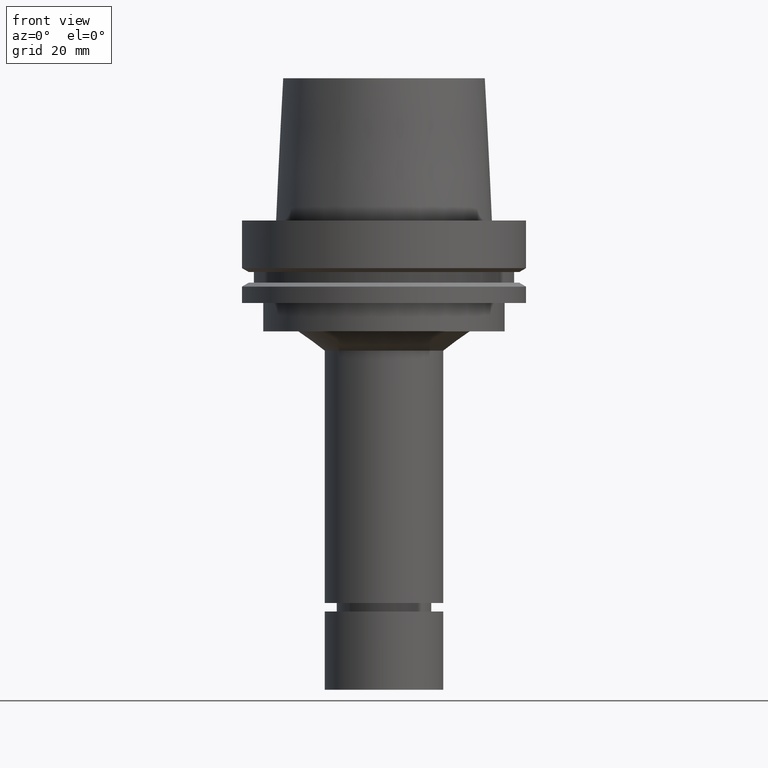
[diagram: clean part render]
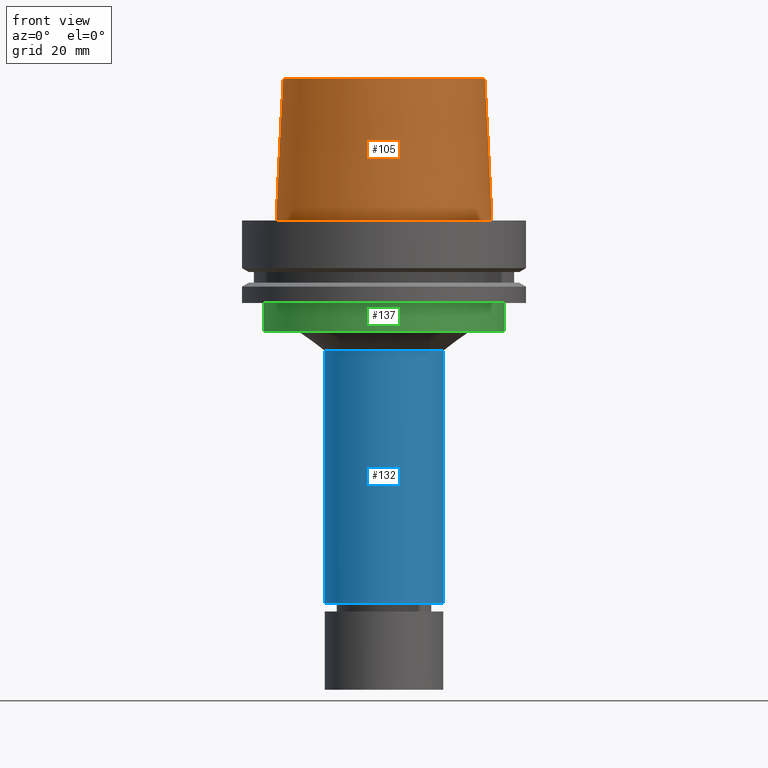
[diagram: same view with three faces highlighted in distinct colors, each labeled with its STEP entity id]
A machine part, front view with three faces highlighted in distinct colors.
Their STEP definitions:

[orange] entity #105 — the highlighted conical surface has half-angle 2.862 deg.
#105=ADVANCED_FACE('Unnamed[1]',(#260,#261),#262,.T.);
#120=EDGE_CURVE('Unnamed[1]',#285,#285,#286,.T.);
#157=EDGE_CURVE('Unnamed[1]',#340,#340,#341,.T.);
#260=FACE_BOUND('',#469,.T.);
#261=FACE_BOUND('',#470,.T.);
#262=CONICAL_SURFACE('',#471,36.7500000007484,0.0499583956894843);
#285=VERTEX_POINT('',#500);
#286=CIRCLE('',#501,35.5000000015618);
#340=VERTEX_POINT('',#566);
#341=CIRCLE('',#567,37.9999999999349);
#469=EDGE_LOOP('',(#698));
#470=EDGE_LOOP('',(#699));
#471=AXIS2_PLACEMENT_3D('',#700,#701,#702);
#500=CARTESIAN_POINT('',(-3.06161699786838E-015,35.5000000015618,50.0));
#501=AXIS2_PLACEMENT_3D('',#727,#728,#729);
#566=CARTESIAN_POINT('',(-3.3636548776863E-032,37.9999999999349,-2.44634216324803E-015));
#567=AXIS2_PLACEMENT_3D('',#787,#788,#789);
#698=ORIENTED_EDGE('',*,*,#157,.F.);
#699=ORIENTED_EDGE('',*,*,#120,.T.);
#700=CARTESIAN_POINT('',(-1.53080849893419E-015,-3.06161699786838E-015,25.0));
#701=DIRECTION('',(6.12323399573676E-017,1.22464679914735E-016,-1.0));
#702=DIRECTION('',(-1.23259516440783E-032,1.0,1.22464679914735E-016));
#727=CARTESIAN_POINT('',(-3.06161699786838E-015,-6.12323399573676E-015,50.0));
#728=DIRECTION('',(6.12323399573677E-017,1.22464679914735E-016,-1.0));
#729=DIRECTION('',(-1.23259516440783E-032,1.0,1.22464679914735E-016));
#787=CARTESIAN_POINT('',(0.0,0.0,0.0));
#788=DIRECTION('',(6.12323399573677E-017,1.22464679914735E-016,-1.0));
#789=DIRECTION('',(-1.23259516440783E-032,1.0,1.22464679914735E-016));

[blue] entity #132 — the highlighted cylindrical surface (bore or boss wall) has radius 21 mm, axis along (0, 0, -1).
#132=ADVANCED_FACE('Unnamed[1]',(#300,#301),#302,.T.);
#170=EDGE_CURVE('Unnamed[1]',#360,#360,#361,.T.);
#194=EDGE_CURVE('Unnamed[1]',#397,#397,#398,.T.);
#300=FACE_BOUND('',#517,.T.);
#301=FACE_BOUND('',#518,.T.);
#302=CYLINDRICAL_SURFACE('',#519,21.0);
#360=VERTEX_POINT('',#592);
#361=CIRCLE('',#593,21.0);
#397=VERTEX_POINT('',#639);
#398=CIRCLE('',#640,21.0);
#517=EDGE_LOOP('',(#739));
#518=EDGE_LOOP('',(#740));
#519=AXIS2_PLACEMENT_3D('',#741,#742,#743);
#592=CARTESIAN_POINT('',(8.23574972426594E-015,21.0,-134.5));
#593=AXIS2_PLACEMENT_3D('',#808,#809,#810);
#639=CARTESIAN_POINT('',(2.80227603553221E-015,21.0,-45.76464067));
#640=AXIS2_PLACEMENT_3D('',#849,#850,#851);
#739=ORIENTED_EDGE('',*,*,#170,.F.);
#740=ORIENTED_EDGE('',*,*,#194,.T.);
#741=CARTESIAN_POINT('',(5.51901287989908E-015,1.10380257597982E-014,-90.1323203349999));
#742=DIRECTION('',(6.12323399573677E-017,1.22464679914735E-016,-1.0));
#743=DIRECTION('',(-1.23259516440783E-032,1.0,1.22464679914735E-016));
#808=CARTESIAN_POINT('',(8.23574972426594E-015,1.64714994485319E-014,-134.5));
#809=DIRECTION('',(6.12323399573677E-017,1.22464679914735E-016,-1.0));
#810=DIRECTION('',(-1.23259516440783E-032,1.0,1.22464679914735E-016));
#849=CARTESIAN_POINT('',(2.80227603553221E-015,5.60455207106442E-015,-45.76464067));
#850=DIRECTION('',(6.12323399573677E-017,1.22464679914735E-016,-1.0));
#851=DIRECTION('',(-1.23259516440783E-032,1.0,1.22464679914735E-016));

[green] entity #137 — the highlighted cylindrical surface (bore or boss wall) has radius 42.5 mm, axis along (0, 0, -1).
#137=ADVANCED_FACE('Unnamed[1]',(#308,#309),#310,.T.);
#168=EDGE_CURVE('Unnamed[1]',#357,#357,#358,.T.);
#196=EDGE_CURVE('Unnamed[1]',#400,#400,#401,.T.);
#308=FACE_BOUND('',#527,.T.);
#309=FACE_BOUND('',#528,.T.);
#310=CYLINDRICAL_SURFACE('',#529,42.5);
#357=VERTEX_POINT('',#588);
#358=CIRCLE('',#589,42.5);
#400=VERTEX_POINT('',#643);
#401=CIRCLE('',#644,42.5);
#527=EDGE_LOOP('',(#748));
#528=EDGE_LOOP('',(#749));
#529=AXIS2_PLACEMENT_3D('',#750,#751,#752);
#588=CARTESIAN_POINT('',(1.77573785876366E-015,42.5,-29.0));
#589=AXIS2_PLACEMENT_3D('',#805,#806,#807);
#643=CARTESIAN_POINT('',(2.38806125833734E-015,42.5,-39.0));
#644=AXIS2_PLACEMENT_3D('',#852,#853,#854);
#748=ORIENTED_EDGE('',*,*,#196,.F.);
#749=ORIENTED_EDGE('',*,*,#168,.T.);
#750=CARTESIAN_POINT('',(2.0818995585505E-015,4.163799117101E-015,-34.0));
#751=DIRECTION('',(6.12323399573677E-017,1.22464679914735E-016,-1.0));
#752=DIRECTION('',(-1.23259516440783E-032,1.0,1.22464679914735E-016));
#805=CARTESIAN_POINT('',(1.77573785876366E-015,3.55147571752733E-015,-29.0));
#806=DIRECTION('',(6.12323399573677E-017,1.22464679914735E-016,-1.0));
#807=DIRECTION('',(-1.23259516440783E-032,1.0,1.22464679914735E-016));
#852=CARTESIAN_POINT('',(2.38806125833734E-015,4.77612251667468E-015,-39.0));
#853=DIRECTION('',(6.12323399573677E-017,1.22464679914735E-016,-1.0));
#854=DIRECTION('',(-1.23259516440783E-032,1.0,1.22464679914735E-016));